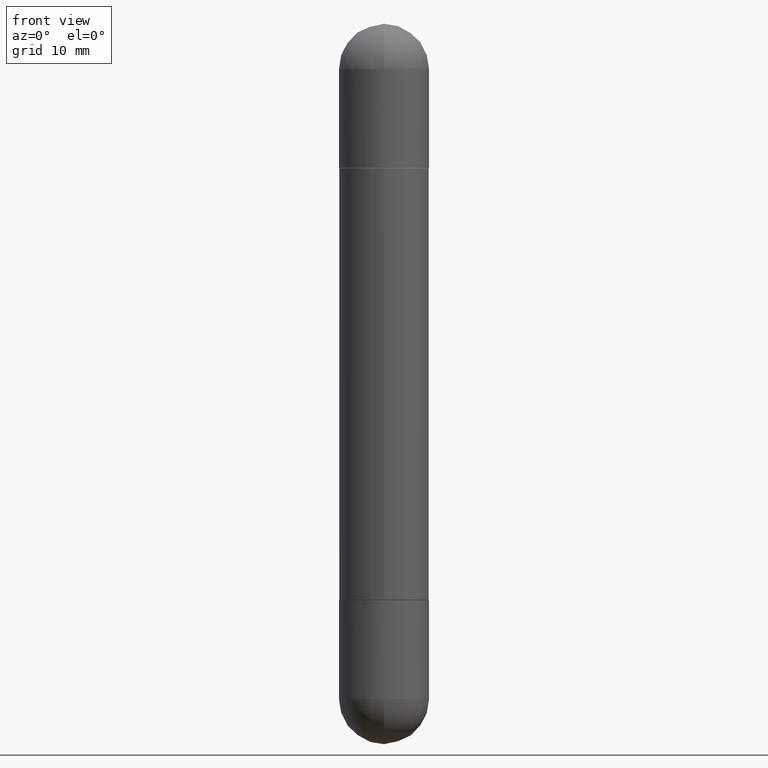
[diagram: clean part render]
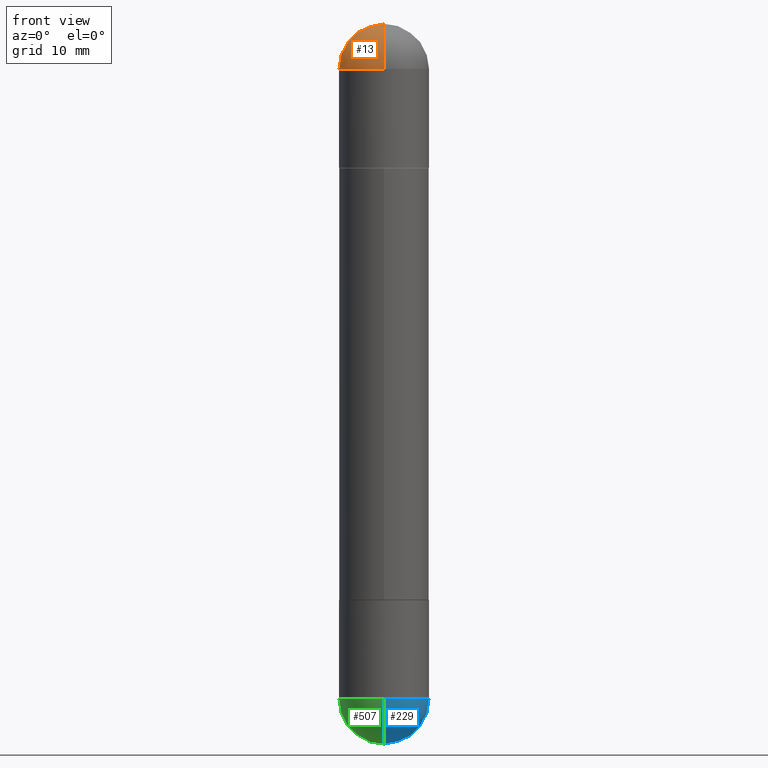
[diagram: same view with three faces highlighted in distinct colors, each labeled with its STEP entity id]
A machine part, front view with three faces highlighted in distinct colors.
Their STEP definitions:

[orange] entity #13 — the highlighted spherical surface has radius 3.9688 mm.
#13 = ADVANCED_FACE ( 'NONE', ( #732 ), #115, .T. ) ;
#39 = DIRECTION ( 'NONE',  ( 2.445468806185136597E-29, -3.491481338843145583E-15, 1.000000000000000000 ) ) ;
#84 = DIRECTION ( 'NONE',  ( -6.982962677686265922E-15, -1.000000000000000000, 0.000000000000000000 ) ) ;
#85 = VERTEX_POINT ( 'NONE', #803 ) ;
#115 = SPHERICAL_SURFACE ( 'NONE', #636, 0.1562500000000002498 ) ;
#117 = DIRECTION ( 'NONE',  ( 2.445468806185136597E-29, -3.491481338843145583E-15, 1.000000000000000000 ) ) ;
#162 = AXIS2_PLACEMENT_3D ( 'NONE', #514, #317, #84 ) ;
#179 = DIRECTION ( 'NONE',  ( 6.982962677686265922E-15, 1.000000000000000000, 3.496765431890251398E-15 ) ) ;
#181 = CARTESIAN_POINT ( 'NONE',  ( 5.731567514496413899E-29, -8.183159387913622595E-15, -0.1562500000000005551 ) ) ;
#185 = CARTESIAN_POINT ( 'NONE',  ( -1.071952812151746981E-15, -0.1562500000000085487, -0.1562500000000011102 ) ) ;
#189 = DIRECTION ( 'NONE',  ( 1.000000000000000000, -6.860497997771530774E-15, -4.840798879624142912E-29 ) ) ;
#224 = CARTESIAN_POINT ( 'NONE',  ( 5.731567514496413899E-29, -8.183159387913622595E-15, -0.1562500000000005551 ) ) ;
#237 = CIRCLE ( 'NONE', #596, 0.1562500000000002498 ) ;
#250 = EDGE_CURVE ( 'NONE', #272, #85, #508, .T. ) ;
#272 = VERTEX_POINT ( 'NONE', #566 ) ;
#305 = DIRECTION ( 'NONE',  ( 1.000000000000000000, -6.982962677686262766E-15, 0.000000000000000000 ) ) ;
#317 = DIRECTION ( 'NONE',  ( -1.000000000000000000, 6.982962677686265922E-15, 4.883557194083112340E-29 ) ) ;
#395 = CARTESIAN_POINT ( 'NONE',  ( -0.1562500000000000000, -6.511108220648156257E-15, -0.1562500000000005551 ) ) ;
#396 = ORIENTED_EDGE ( 'NONE', *, *, #727, .F. ) ;
#410 = EDGE_LOOP ( 'NONE', ( #396, #505, #653, #591 ) ) ;
#431 = DIRECTION ( 'NONE',  ( 6.860497997771530774E-15, 1.000000000000000000, 0.000000000000000000 ) ) ;
#442 = VERTEX_POINT ( 'NONE', #395 ) ;
#488 = CARTESIAN_POINT ( 'NONE',  ( 5.400447736582527652E-29, -8.657341756053672891E-15, -0.1562500000000005551 ) ) ;
#505 = ORIENTED_EDGE ( 'NONE', *, *, #250, .T. ) ;
#508 = CIRCLE ( 'NONE', #162, 0.1562500000000002498 ) ;
#510 = CIRCLE ( 'NONE', #585, 0.1562500000000000000 ) ;
#514 = CARTESIAN_POINT ( 'NONE',  ( 5.400447736582527652E-29, -8.657341756053672891E-15, -0.1562500000000005551 ) ) ;
#539 = EDGE_CURVE ( 'NONE', #85, #442, #510, .T. ) ;
#559 = AXIS2_PLACEMENT_3D ( 'NONE', #181, #117, #305 ) ;
#566 = CARTESIAN_POINT ( 'NONE',  ( 5.789233224183170584E-29, -9.193318162129576161E-15, -3.073328992872296367E-16 ) ) ;
#585 = AXIS2_PLACEMENT_3D ( 'NONE', #224, #39, #784 ) ;
#591 = ORIENTED_EDGE ( 'NONE', *, *, #690, .T. ) ;
#596 = AXIS2_PLACEMENT_3D ( 'NONE', #488, #189, #431 ) ;
#608 = CIRCLE ( 'NONE', #559, 0.1562500000000000000 ) ;
#636 = AXIS2_PLACEMENT_3D ( 'NONE', #797, #739, #179 ) ;
#642 = VERTEX_POINT ( 'NONE', #185 ) ;
#653 = ORIENTED_EDGE ( 'NONE', *, *, #539, .T. ) ;
#690 = EDGE_CURVE ( 'NONE', #442, #642, #608, .T. ) ;
#727 = EDGE_CURVE ( 'NONE', #272, #642, #237, .T. ) ;
#732 = FACE_OUTER_BOUND ( 'NONE', #410, .T. ) ;
#739 = DIRECTION ( 'NONE',  ( 1.000000000000000000, -6.982962677686265922E-15, -4.883557194083112340E-29 ) ) ;
#784 = DIRECTION ( 'NONE',  ( 1.000000000000000000, -6.982962677686262766E-15, 0.000000000000000000 ) ) ;
#797 = CARTESIAN_POINT ( 'NONE',  ( 5.400447736582527652E-29, -8.657341756053672891E-15, -0.1562500000000005551 ) ) ;
#803 = CARTESIAN_POINT ( 'NONE',  ( 1.091087918388535577E-15, 0.1562499999999916733, -0.1562500000000000000 ) ) ;

[blue] entity #229 — the highlighted spherical surface has radius 3.9688 mm.
#36 = ORIENTED_EDGE ( 'NONE', *, *, #516, .F. ) ;
#53 = CARTESIAN_POINT ( 'NONE',  ( 5.400447736582527652E-29, -8.657341756053672891E-15, -2.343750000000000000 ) ) ;
#54 = CARTESIAN_POINT ( 'NONE',  ( 5.789233224183170584E-29, -9.193318162129576161E-15, -2.500000000000000000 ) ) ;
#61 = SPHERICAL_SURFACE ( 'NONE', #454, 0.1562500000000002498 ) ;
#63 = EDGE_CURVE ( 'NONE', #198, #103, #239, .T. ) ;
#79 = VERTEX_POINT ( 'NONE', #606 ) ;
#93 = ORIENTED_EDGE ( 'NONE', *, *, #63, .T. ) ;
#94 = VERTEX_POINT ( 'NONE', #482 ) ;
#97 = DIRECTION ( 'NONE',  ( -7.105427357601000281E-15, -1.000000000000000000, 0.000000000000000000 ) ) ;
#103 = VERTEX_POINT ( 'NONE', #435 ) ;
#137 = AXIS2_PLACEMENT_3D ( 'NONE', #352, #408, #535 ) ;
#167 = ORIENTED_EDGE ( 'NONE', *, *, #676, .F. ) ;
#198 = VERTEX_POINT ( 'NONE', #54 ) ;
#229 = ADVANCED_FACE ( 'NONE', ( #618 ), #61, .T. ) ;
#233 = DIRECTION ( 'NONE',  ( -1.000000000000000000, 7.105427357601001070E-15, -4.926315508542082329E-29 ) ) ;
#239 = CIRCLE ( 'NONE', #439, 0.1562500000000002498 ) ;
#275 = CARTESIAN_POINT ( 'NONE',  ( 5.400447736582527652E-29, -8.657341756053672891E-15, -2.343750000000000000 ) ) ;
#303 = DIRECTION ( 'NONE',  ( 1.000000000000000000, -6.982962677686265922E-15, 4.883557194083112340E-29 ) ) ;
#310 = CARTESIAN_POINT ( 'NONE',  ( 5.400447736582527652E-29, -8.657341756053672891E-15, -2.343750000000000000 ) ) ;
#345 = ORIENTED_EDGE ( 'NONE', *, *, #568, .F. ) ;
#352 = CARTESIAN_POINT ( 'NONE',  ( 5.731567514496413899E-29, -8.183159387913622595E-15, -2.343750000000000000 ) ) ;
#387 = CIRCLE ( 'NONE', #582, 0.1562500000000000000 ) ;
#407 = CIRCLE ( 'NONE', #538, 0.1562500000000002498 ) ;
#408 = DIRECTION ( 'NONE',  ( -2.445468806185136597E-29, 3.491481338843145583E-15, 1.000000000000000000 ) ) ;
#435 = CARTESIAN_POINT ( 'NONE',  ( 1.091087918388535577E-15, 0.1562499999999916733, -2.343750000000000444 ) ) ;
#439 = AXIS2_PLACEMENT_3D ( 'NONE', #53, #303, #553 ) ;
#454 = AXIS2_PLACEMENT_3D ( 'NONE', #310, #611, #498 ) ;
#482 = CARTESIAN_POINT ( 'NONE',  ( 0.1562500000000000000, -8.674148951188436448E-15, -2.343750000000000000 ) ) ;
#498 = DIRECTION ( 'NONE',  ( 6.982962677686265922E-15, 1.000000000000000000, -3.496765431890251398E-15 ) ) ;
#516 = EDGE_CURVE ( 'NONE', #198, #79, #407, .T. ) ;
#535 = DIRECTION ( 'NONE',  ( 1.000000000000000000, -6.982962677686262766E-15, 0.000000000000000000 ) ) ;
#538 = AXIS2_PLACEMENT_3D ( 'NONE', #275, #233, #97 ) ;
#553 = DIRECTION ( 'NONE',  ( 6.982962677686265922E-15, 1.000000000000000000, 0.000000000000000000 ) ) ;
#568 = EDGE_CURVE ( 'NONE', #94, #103, #723, .T. ) ;
#582 = AXIS2_PLACEMENT_3D ( 'NONE', #810, #615, #669 ) ;
#606 = CARTESIAN_POINT ( 'NONE',  ( -1.110223024625101517E-15, -0.1562500000000085487, -2.343749999999999556 ) ) ;
#611 = DIRECTION ( 'NONE',  ( -1.000000000000000000, 6.982962677686265922E-15, -4.883557194083112340E-29 ) ) ;
#615 = DIRECTION ( 'NONE',  ( -2.445468806185136597E-29, 3.491481338843145583E-15, 1.000000000000000000 ) ) ;
#618 = FACE_OUTER_BOUND ( 'NONE', #779, .T. ) ;
#669 = DIRECTION ( 'NONE',  ( 1.000000000000000000, -6.982962677686262766E-15, 0.000000000000000000 ) ) ;
#676 = EDGE_CURVE ( 'NONE', #79, #94, #387, .T. ) ;
#723 = CIRCLE ( 'NONE', #137, 0.1562500000000000000 ) ;
#779 = EDGE_LOOP ( 'NONE', ( #36, #93, #345, #167 ) ) ;
#810 = CARTESIAN_POINT ( 'NONE',  ( 5.731567514496413899E-29, -8.183159387913622595E-15, -2.343750000000000000 ) ) ;

[green] entity #507 — the highlighted spherical surface has radius 3.9688 mm.
#40 = ORIENTED_EDGE ( 'NONE', *, *, #516, .T. ) ;
#53 = CARTESIAN_POINT ( 'NONE',  ( 5.400447736582527652E-29, -8.657341756053672891E-15, -2.343750000000000000 ) ) ;
#54 = CARTESIAN_POINT ( 'NONE',  ( 5.789233224183170584E-29, -9.193318162129576161E-15, -2.500000000000000000 ) ) ;
#63 = EDGE_CURVE ( 'NONE', #198, #103, #239, .T. ) ;
#72 = EDGE_CURVE ( 'NONE', #103, #412, #190, .T. ) ;
#79 = VERTEX_POINT ( 'NONE', #606 ) ;
#91 = CARTESIAN_POINT ( 'NONE',  ( 5.400447736582527652E-29, -8.657341756053672891E-15, -2.343750000000000000 ) ) ;
#97 = DIRECTION ( 'NONE',  ( -7.105427357601000281E-15, -1.000000000000000000, 0.000000000000000000 ) ) ;
#103 = VERTEX_POINT ( 'NONE', #435 ) ;
#186 = DIRECTION ( 'NONE',  ( 1.000000000000000000, -6.982962677686262766E-15, 0.000000000000000000 ) ) ;
#190 = CIRCLE ( 'NONE', #598, 0.1562500000000000000 ) ;
#198 = VERTEX_POINT ( 'NONE', #54 ) ;
#203 = AXIS2_PLACEMENT_3D ( 'NONE', #91, #338, #403 ) ;
#223 = EDGE_LOOP ( 'NONE', ( #698, #40, #694, #795 ) ) ;
#233 = DIRECTION ( 'NONE',  ( -1.000000000000000000, 7.105427357601001070E-15, -4.926315508542082329E-29 ) ) ;
#236 = DIRECTION ( 'NONE',  ( -2.445468806185136597E-29, 3.491481338843145583E-15, 1.000000000000000000 ) ) ;
#239 = CIRCLE ( 'NONE', #439, 0.1562500000000002498 ) ;
#275 = CARTESIAN_POINT ( 'NONE',  ( 5.400447736582527652E-29, -8.657341756053672891E-15, -2.343750000000000000 ) ) ;
#303 = DIRECTION ( 'NONE',  ( 1.000000000000000000, -6.982962677686265922E-15, 4.883557194083112340E-29 ) ) ;
#309 = DIRECTION ( 'NONE',  ( -2.445468806185136597E-29, 3.491481338843145583E-15, 1.000000000000000000 ) ) ;
#322 = CIRCLE ( 'NONE', #787, 0.1562500000000000000 ) ;
#338 = DIRECTION ( 'NONE',  ( -1.000000000000000000, 6.982962677686265922E-15, -4.883557194083112340E-29 ) ) ;
#403 = DIRECTION ( 'NONE',  ( 6.982962677686265922E-15, 1.000000000000000000, -3.496765431890251398E-15 ) ) ;
#407 = CIRCLE ( 'NONE', #538, 0.1562500000000002498 ) ;
#412 = VERTEX_POINT ( 'NONE', #579 ) ;
#435 = CARTESIAN_POINT ( 'NONE',  ( 1.091087918388535577E-15, 0.1562499999999916733, -2.343750000000000444 ) ) ;
#439 = AXIS2_PLACEMENT_3D ( 'NONE', #53, #303, #553 ) ;
#507 = ADVANCED_FACE ( 'NONE', ( #712 ), #646, .T. ) ;
#516 = EDGE_CURVE ( 'NONE', #198, #79, #407, .T. ) ;
#538 = AXIS2_PLACEMENT_3D ( 'NONE', #275, #233, #97 ) ;
#553 = DIRECTION ( 'NONE',  ( 6.982962677686265922E-15, 1.000000000000000000, 0.000000000000000000 ) ) ;
#558 = DIRECTION ( 'NONE',  ( 1.000000000000000000, -6.982962677686262766E-15, 0.000000000000000000 ) ) ;
#579 = CARTESIAN_POINT ( 'NONE',  ( -0.1562500000000000000, -6.472838008174800734E-15, -2.343750000000000000 ) ) ;
#598 = AXIS2_PLACEMENT_3D ( 'NONE', #807, #236, #186 ) ;
#606 = CARTESIAN_POINT ( 'NONE',  ( -1.110223024625101517E-15, -0.1562500000000085487, -2.343749999999999556 ) ) ;
#617 = CARTESIAN_POINT ( 'NONE',  ( 5.731567514496413899E-29, -8.183159387913622595E-15, -2.343750000000000000 ) ) ;
#646 = SPHERICAL_SURFACE ( 'NONE', #203, 0.1562500000000002498 ) ;
#694 = ORIENTED_EDGE ( 'NONE', *, *, #747, .F. ) ;
#698 = ORIENTED_EDGE ( 'NONE', *, *, #63, .F. ) ;
#712 = FACE_OUTER_BOUND ( 'NONE', #223, .T. ) ;
#747 = EDGE_CURVE ( 'NONE', #412, #79, #322, .T. ) ;
#787 = AXIS2_PLACEMENT_3D ( 'NONE', #617, #309, #558 ) ;
#795 = ORIENTED_EDGE ( 'NONE', *, *, #72, .F. ) ;
#807 = CARTESIAN_POINT ( 'NONE',  ( 5.731567514496413899E-29, -8.183159387913622595E-15, -2.343750000000000000 ) ) ;